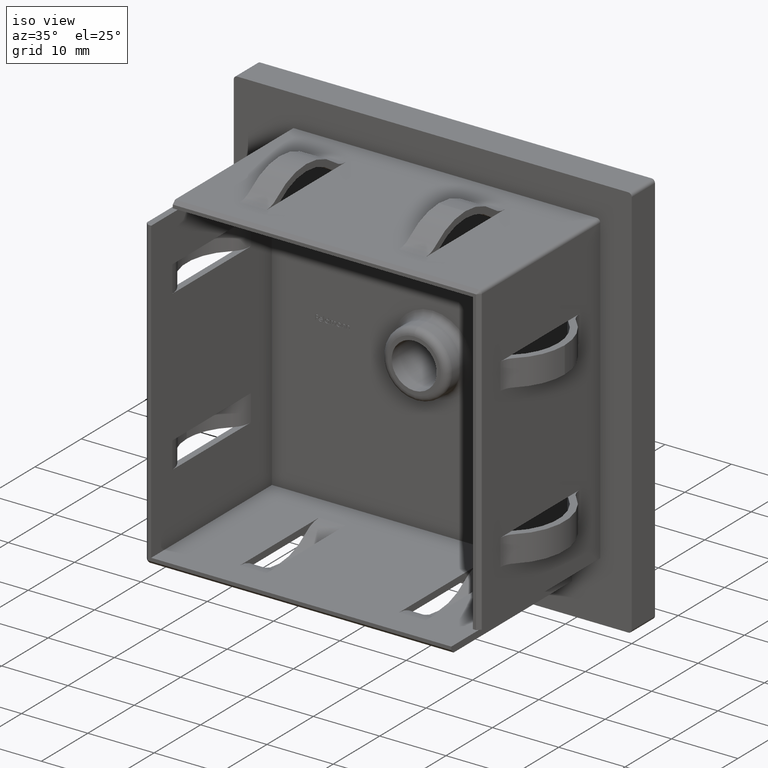
[diagram: clean part render]
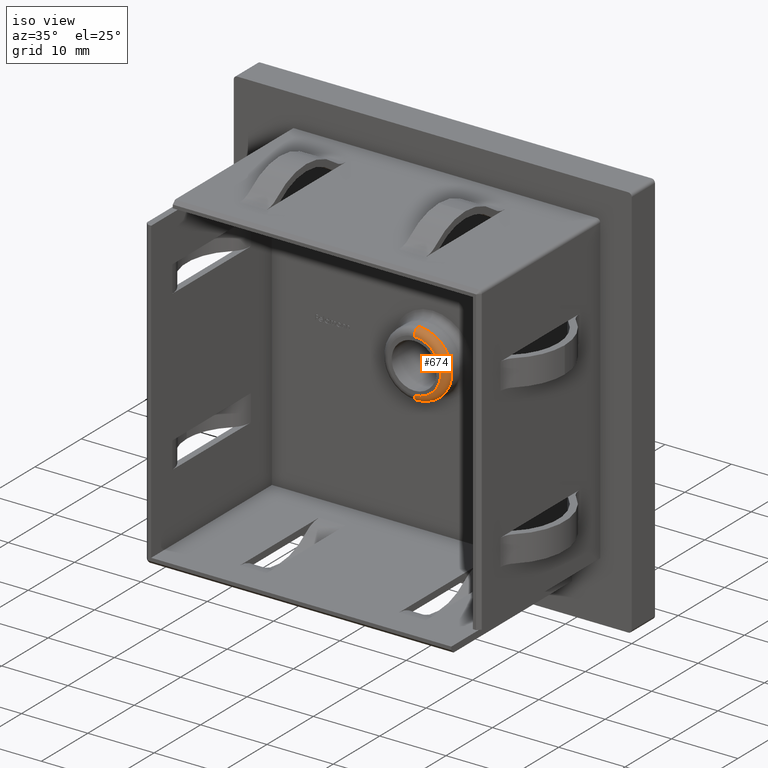
[diagram: same view with one face highlighted and labeled with its STEP entity id]
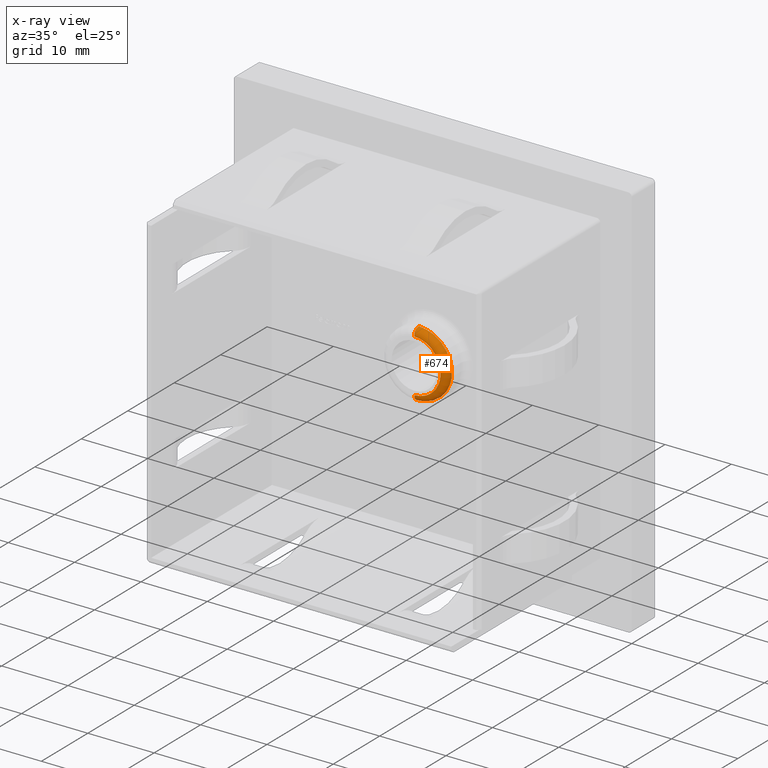
[diagram: x-ray of the same camera — body ghosted, the highlighted face saturated]
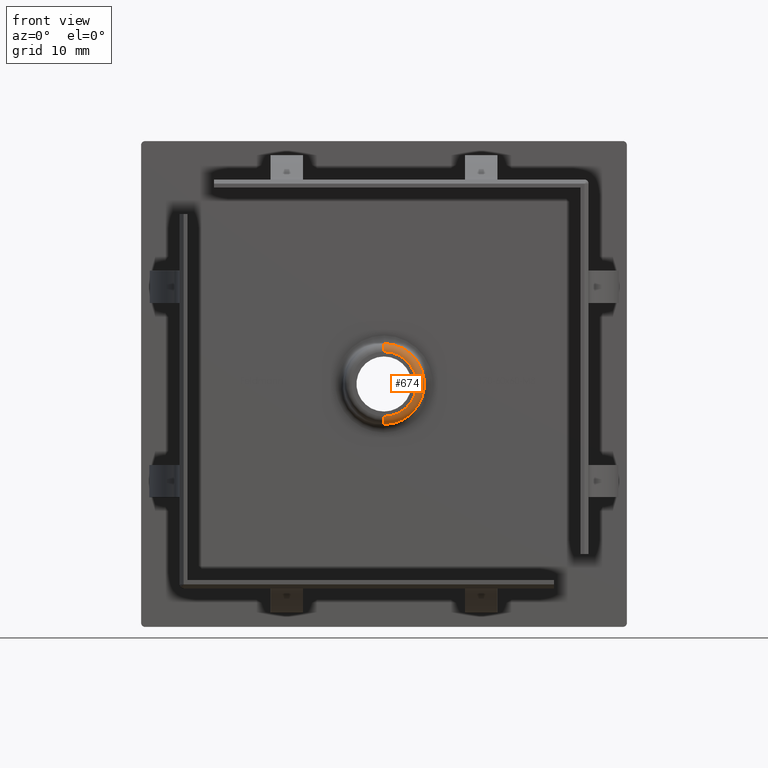
[diagram: same view with one face highlighted and labeled with its STEP entity id]
A machine part, iso view. The second image highlights one B-rep face of the part: STEP entity #674.
The next image is the same camera in x-ray: the body ghosted, the highlighted face saturated — about 0% of this face is hidden behind the body in this view.
A second angle (front view) of the same face is appended — the face is thin or edge-on in the first view.
In plain terms, the highlighted toroidal blend (fillet) surface has major radius 4 mm and minor (blend) radius 1 mm.
Its self-contained STEP definition (entity closure, byte-faithful):
#674 = ADVANCED_FACE ( 'NONE', ( #4388 ), #14791, .T. ) ;
#718 = CARTESIAN_POINT ( 'NONE',  ( 0.0000000000000000000, -3.999999999999999100, 4.000000000000000000 ) ) ;
#1470 = DIRECTION ( 'NONE',  ( -0.0000000000000000000, -1.000000000000000000, -0.0000000000000000000 ) ) ;
#1896 = CIRCLE ( 'NONE', #15718, 1.000000000000000000 ) ;
#2135 = DIRECTION ( 'NONE',  ( 0.0000000000000000000, 1.000000000000000000, 0.0000000000000000000 ) ) ;
#2837 = VERTEX_POINT ( 'NONE', #3501 ) ;
#2967 = AXIS2_PLACEMENT_3D ( 'NONE', #11175, #1470, #8291 ) ;
#3225 = CIRCLE ( 'NONE', #2967, 4.000000000000000000 ) ;
#3501 = CARTESIAN_POINT ( 'NONE',  ( 5.510910596163088600E-016, -3.999999999999999100, -4.000000000000000000 ) ) ;
#3612 = AXIS2_PLACEMENT_3D ( 'NONE', #16292, #16355, #7888 ) ;
#3934 = CARTESIAN_POINT ( 'NONE',  ( 6.123233995736766300E-016, -2.999999999999999100, -5.000000000000000000 ) ) ;
#3988 = DIRECTION ( 'NONE',  ( 0.0000000000000000000, 1.000000000000000000, 0.0000000000000000000 ) ) ;
#4142 = ORIENTED_EDGE ( 'NONE', *, *, #9395, .T. ) ;
#4388 = FACE_OUTER_BOUND ( 'NONE', #17307, .T. ) ;
#6058 = VERTEX_POINT ( 'NONE', #9150 ) ;
#7435 = VERTEX_POINT ( 'NONE', #718 ) ;
#7596 = AXIS2_PLACEMENT_3D ( 'NONE', #7680, #2135, #17617 ) ;
#7680 = CARTESIAN_POINT ( 'NONE',  ( 0.0000000000000000000, -2.999999999999999100, 0.0000000000000000000 ) ) ;
#7888 = DIRECTION ( 'NONE',  ( 1.224646799147353500E-016, 0.0000000000000000000, -1.000000000000000000 ) ) ;
#8291 = DIRECTION ( 'NONE',  ( 0.0000000000000000000, 0.0000000000000000000, 1.000000000000000000 ) ) ;
#9150 = CARTESIAN_POINT ( 'NONE',  ( 0.0000000000000000000, -2.999999999999999100, 5.000000000000000000 ) ) ;
#9395 = EDGE_CURVE ( 'NONE', #2837, #13056, #15099, .T. ) ;
#9633 = EDGE_CURVE ( 'NONE', #6058, #13056, #15743, .T. ) ;
#11175 = CARTESIAN_POINT ( 'NONE',  ( 0.0000000000000000000, -3.999999999999999100, 0.0000000000000000000 ) ) ;
#11198 = CARTESIAN_POINT ( 'NONE',  ( 0.0000000000000000000, -2.999999999999999100, 0.0000000000000000000 ) ) ;
#12467 = AXIS2_PLACEMENT_3D ( 'NONE', #11198, #3988, #13878 ) ;
#12849 = EDGE_CURVE ( 'NONE', #7435, #6058, #1896, .T. ) ;
#13056 = VERTEX_POINT ( 'NONE', #3934 ) ;
#13106 = ORIENTED_EDGE ( 'NONE', *, *, #12849, .F. ) ;
#13143 = DIRECTION ( 'NONE',  ( 0.0000000000000000000, 0.0000000000000000000, 1.000000000000000000 ) ) ;
#13878 = DIRECTION ( 'NONE',  ( 0.0000000000000000000, 0.0000000000000000000, 1.000000000000000000 ) ) ;
#14197 = ORIENTED_EDGE ( 'NONE', *, *, #9633, .F. ) ;
#14587 = CARTESIAN_POINT ( 'NONE',  ( 0.0000000000000000000, -2.999999999999999100, 4.000000000000000000 ) ) ;
#14791 = TOROIDAL_SURFACE ( 'NONE', #7596, 4.000000000000000000, 1.000000000000000000 ) ;
#15099 = CIRCLE ( 'NONE', #3612, 1.000000000000000000 ) ;
#15434 = ORIENTED_EDGE ( 'NONE', *, *, #17123, .F. ) ;
#15718 = AXIS2_PLACEMENT_3D ( 'NONE', #14587, #16122, #13143 ) ;
#15743 = CIRCLE ( 'NONE', #12467, 5.000000000000000000 ) ;
#16122 = DIRECTION ( 'NONE',  ( -1.000000000000000000, 0.0000000000000000000, 0.0000000000000000000 ) ) ;
#16292 = CARTESIAN_POINT ( 'NONE',  ( 4.898587196589412800E-016, -2.999999999999999100, -4.000000000000000000 ) ) ;
#16355 = DIRECTION ( 'NONE',  ( 1.000000000000000000, -0.0000000000000000000, 1.224646799147353200E-016 ) ) ;
#17123 = EDGE_CURVE ( 'NONE', #2837, #7435, #3225, .T. ) ;
#17307 = EDGE_LOOP ( 'NONE', ( #15434, #4142, #14197, #13106 ) ) ;
#17617 = DIRECTION ( 'NONE',  ( 0.0000000000000000000, 0.0000000000000000000, 1.000000000000000000 ) ) ;